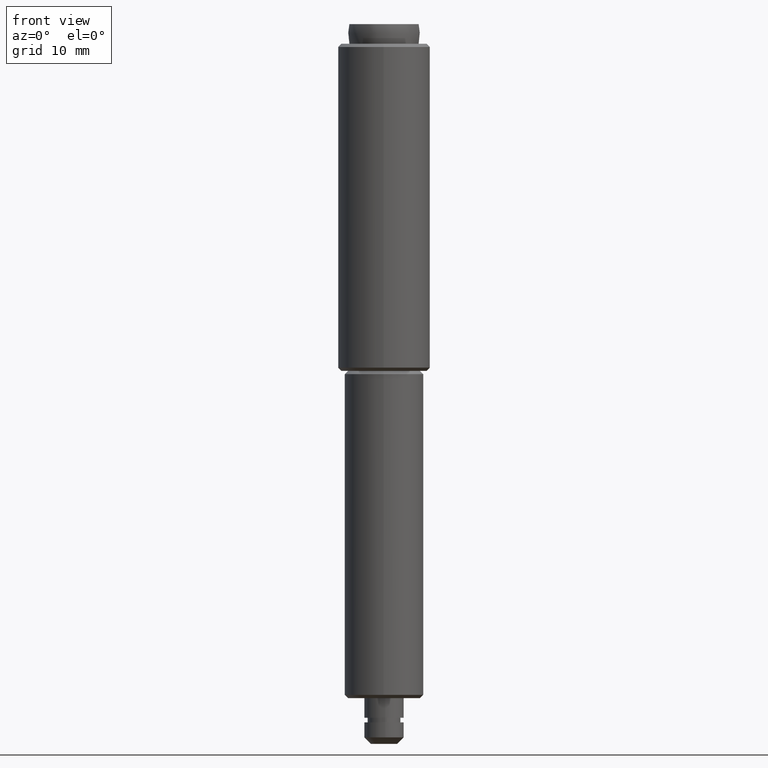
[diagram: clean part render]
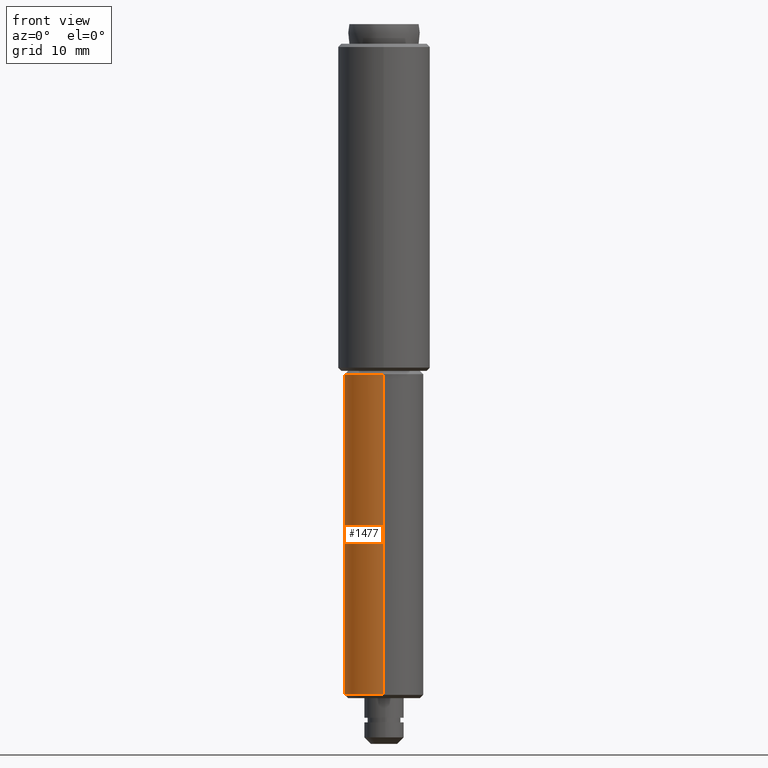
[diagram: same view with one face highlighted and labeled with its STEP entity id]
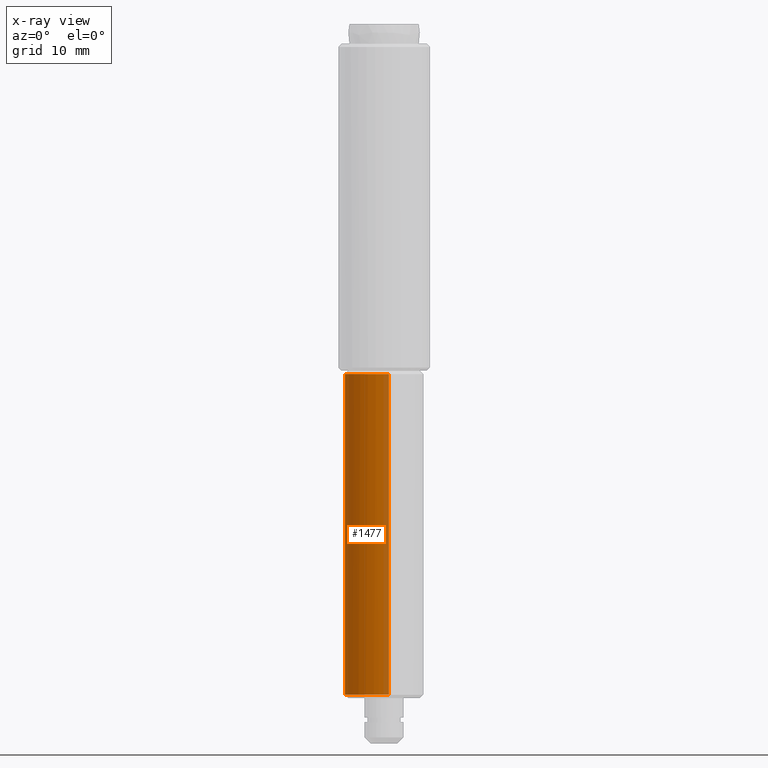
[diagram: x-ray of the same camera — body ghosted, the highlighted face saturated]
A machine part, front view. The second image highlights one B-rep face of the part: STEP entity #1477.
The next image is the same camera in x-ray: the body ghosted, the highlighted face saturated — about 12% of this face is hidden behind the body in this view.
In plain terms, the highlighted face is a freeform B-spline surface patch.
Its self-contained STEP definition (entity closure, byte-faithful):
#1014=CARTESIAN_POINT('',(-2.425292592207875,5.487982857342407,56.499999999974783));
#1015=VERTEX_POINT('',#1014);
#1016=CARTESIAN_POINT('',(0.744768012502784,5.953597282950256,56.500000000000000));
#1017=VERTEX_POINT('',#1016);
#1018=CARTESIAN_POINT('',(-2.425292592207875,5.487982857342407,56.499999999974797));
#1019=CARTESIAN_POINT('',(-1.266693703820140,5.999999999999999,56.500000000000007));
#1020=CARTESIAN_POINT('',(0.0,6.0,56.500000000000000));
#1021=CARTESIAN_POINT('',(0.373829565225048,6.000000000000001,56.500000000000007));
#1022=CARTESIAN_POINT('',(0.744768012502784,5.953597282950256,56.500000000000000));
#1030=(BOUNDED_CURVE()B_SPLINE_CURVE(2,(#1018,#1019,#1020,#1021,#1022),.UNSPECIFIED.,.F.,.U.)B_SPLINE_CURVE_WITH_KNOTS((3,2,3),(0.181361578444544,0.250000000000000,0.271473928972050),.UNSPECIFIED.)CURVE()GEOMETRIC_REPRESENTATION_ITEM()RATIONAL_B_SPLINE_CURVE((0.883326595735626,0.919585087105391,1.0,0.974841727291220,0.954005430272102))REPRESENTATION_ITEM(''));
#1031=EDGE_CURVE('',#1015,#1017,#1030,.T.);
#1074=CARTESIAN_POINT('',(-0.052359213121789,-5.999771538383760,56.500000000000107));
#1075=VERTEX_POINT('',#1074);
#1132=CARTESIAN_POINT('',(-6.0,0.0,56.500000000000000));
#1133=VERTEX_POINT('',#1132);
#1134=CARTESIAN_POINT('',(-6.0,0.0,56.500000000000000));
#1135=CARTESIAN_POINT('',(-6.0,3.908220015128642,56.499999999999993));
#1136=CARTESIAN_POINT('',(-2.425292592207875,5.487982857342407,56.499999999974797));
#1144=(BOUNDED_CURVE()B_SPLINE_CURVE(2,(#1134,#1135,#1136),.UNSPECIFIED.,.F.,.U.)B_SPLINE_CURVE_WITH_KNOTS((3,3),(0.0,0.181361578444544),.UNSPECIFIED.)CURVE()GEOMETRIC_REPRESENTATION_ITEM()RATIONAL_B_SPLINE_CURVE((1.0,0.787521694081156,0.883326595735626))REPRESENTATION_ITEM(''));
#1145=EDGE_CURVE('',#1133,#1015,#1144,.T.);
#1147=CARTESIAN_POINT('',(-0.052359213121789,-5.999771538383760,56.500000000000114));
#1148=CARTESIAN_POINT('',(-6.000000000000001,-5.947867263048213,56.500000000000007));
#1149=CARTESIAN_POINT('',(-6.0,0.0,56.500000000000000));
#1157=(BOUNDED_CURVE()B_SPLINE_CURVE(2,(#1147,#1148,#1149),.UNSPECIFIED.,.F.,.U.)B_SPLINE_CURVE_WITH_KNOTS((3,3),(0.751539894350435,1.0),.UNSPECIFIED.)CURVE()GEOMETRIC_REPRESENTATION_ITEM()RATIONAL_B_SPLINE_CURVE((0.996414028064655,0.708910879638274,1.0))REPRESENTATION_ITEM(''));
#1158=EDGE_CURVE('',#1075,#1133,#1157,.T.);
#1219=CARTESIAN_POINT('',(-5.845308919009538,1.353648271192896,7.500008000062973));
#1220=VERTEX_POINT('',#1219);
#1221=CARTESIAN_POINT('',(-6.0,0.0,7.500008000000000));
#1222=VERTEX_POINT('',#1221);
#1223=CARTESIAN_POINT('',(-5.845308919009539,1.353648271192896,7.500008000062973));
#1224=CARTESIAN_POINT('',(-6.000000000000001,0.685662964632475,7.500008000000000));
#1225=CARTESIAN_POINT('',(-6.0,0.0,7.500008000000000));
#1233=(BOUNDED_CURVE()B_SPLINE_CURVE(2,(#1223,#1224,#1225),.UNSPECIFIED.,.F.,.U.)B_SPLINE_CURVE_WITH_KNOTS((3,3),(0.961422971754846,1.0),.UNSPECIFIED.)CURVE()GEOMETRIC_REPRESENTATION_ITEM()RATIONAL_B_SPLINE_CURVE((0.923556557394568,0.954804200100078,1.0))REPRESENTATION_ITEM(''));
#1234=EDGE_CURVE('',#1220,#1222,#1233,.T.);
#1292=CARTESIAN_POINT('',(-0.052359214163134,5.999771538534402,7.500008000159578));
#1293=VERTEX_POINT('',#1292);
#1299=CARTESIAN_POINT('',(0.744763078572230,5.953597900158432,7.500007999999998));
#1300=VERTEX_POINT('',#1299);
#1301=CARTESIAN_POINT('',(0.744763078572230,5.953597900158433,7.500007999999998));
#1302=CARTESIAN_POINT('',(0.373827069369209,6.0,7.500008000000000));
#1303=CARTESIAN_POINT('',(0.0,6.0,7.500008000000000));
#1304=CARTESIAN_POINT('',(-0.026180106095789,6.0,7.500008000000000));
#1305=CARTESIAN_POINT('',(-0.052359214163134,5.999771538534402,7.500008000159578));
#1313=(BOUNDED_CURVE()B_SPLINE_CURVE(2,(#1301,#1302,#1303,#1304,#1305),.UNSPECIFIED.,.F.,.U.)B_SPLINE_CURVE_WITH_KNOTS((3,2,3),(0.728526210790736,0.750000000000000,0.751539894403774),.UNSPECIFIED.)CURVE()GEOMETRIC_REPRESENTATION_ITEM()RATIONAL_B_SPLINE_CURVE((0.954005701497817,0.974841891033508,1.0,0.998195901485783,0.996414027941213))REPRESENTATION_ITEM(''));
#1314=EDGE_CURVE('',#1300,#1293,#1313,.T.);
#1331=CARTESIAN_POINT('',(-0.052359213232947,-5.999771538382909,7.500008000000000));
#1332=VERTEX_POINT('',#1331);
#1348=CARTESIAN_POINT('',(-6.0,0.0,7.500008000000000));
#1349=CARTESIAN_POINT('',(-6.000000000000001,-5.947867263088646,7.500008000000001));
#1350=CARTESIAN_POINT('',(-0.052359213232947,-5.999771538382909,7.500008000000000));
#1358=(BOUNDED_CURVE()B_SPLINE_CURVE(2,(#1348,#1349,#1350),.UNSPECIFIED.,.F.,.U.)B_SPLINE_CURVE_WITH_KNOTS((3,3),(0.0,0.248460105650762),.UNSPECIFIED.)CURVE()GEOMETRIC_REPRESENTATION_ITEM()RATIONAL_B_SPLINE_CURVE((1.0,0.708910879636871,0.996414028067426))REPRESENTATION_ITEM(''));
#1359=EDGE_CURVE('',#1222,#1332,#1358,.T.);
#1378=CARTESIAN_POINT('',(-0.052359214163134,5.999771538534402,7.500008000159578));
#1379=CARTESIAN_POINT('',(-4.778918510446616,5.958523478445016,7.500008000000001));
#1380=CARTESIAN_POINT('',(-5.845308919009538,1.353648271192896,7.500008000062973));
#1388=(BOUNDED_CURVE()B_SPLINE_CURVE(2,(#1378,#1379,#1380),.UNSPECIFIED.,.F.,.U.)B_SPLINE_CURVE_WITH_KNOTS((3,3),(0.751539894403773,0.961422971754845),.UNSPECIFIED.)CURVE()GEOMETRIC_REPRESENTATION_ITEM()RATIONAL_B_SPLINE_CURVE((0.996414027941215,0.753549905525967,0.923556557394567))REPRESENTATION_ITEM(''));
#1389=EDGE_CURVE('',#1293,#1220,#1388,.T.);
#1429=CARTESIAN_POINT('',(-0.052359213121789,-5.999771538383760,56.500000000000107));
#1430=CARTESIAN_POINT('',(-0.052359213232947,-5.999771538382909,7.500008000000000));
#1431=QUASI_UNIFORM_CURVE('',1,(#1429,#1430),.UNSPECIFIED.,.F.,.U.);
#1432=EDGE_CURVE('',#1075,#1332,#1431,.T.);
#1436=CARTESIAN_POINT('',(0.744768012502784,5.953597282950256,56.500000000000000));
#1437=CARTESIAN_POINT('',(0.744763078572230,5.953597900158432,7.500007999999998));
#1438=QUASI_UNIFORM_CURVE('',1,(#1436,#1437),.UNSPECIFIED.,.F.,.U.);
#1439=EDGE_CURVE('',#1017,#1300,#1438,.T.);
#1444=CARTESIAN_POINT('',(-0.052359212990243,-5.999771538385026,57.724999800000013));
#1445=CARTESIAN_POINT('',(-6.052130751375269,-5.947412325394783,57.724999800000006));
#1446=CARTESIAN_POINT('',(-5.999771538385026,0.052359212990243,57.724999800000013));
#1447=CARTESIAN_POINT('',(-5.947412325394783,6.052130751375269,57.724999800000006));
#1448=CARTESIAN_POINT('',(0.052359212990243,5.999771538385026,57.724999800000013));
#1449=CARTESIAN_POINT('',(0.399900953749042,5.996738587561654,57.724999799999999));
#1450=CARTESIAN_POINT('',(0.744768012478976,5.953597282953231,57.724999800000006));
#1451=CARTESIAN_POINT('',(-0.052359212990243,-5.999771538385026,6.244383204999998));
#1452=CARTESIAN_POINT('',(-6.052130751375269,-5.947412325394783,6.244383204999998));
#1453=CARTESIAN_POINT('',(-5.999771538385026,0.052359212990243,6.244383204999998));
#1454=CARTESIAN_POINT('',(-5.947412325394783,6.052130751375269,6.244383204999998));
#1455=CARTESIAN_POINT('',(0.052359212990243,5.999771538385026,6.244383204999998));
#1456=CARTESIAN_POINT('',(0.399900953749042,5.996738587561654,6.244383204999997));
#1457=CARTESIAN_POINT('',(0.744768012478976,5.953597282953231,6.244383204999997));
#1465=(BOUNDED_SURFACE()B_SPLINE_SURFACE(2,1,((#1444,#1451),(#1445,#1452),(#1446,#1453),(#1447,#1454),(#1448,#1455),(#1449,#1456),(#1450,#1457)),.UNSPECIFIED.,.F.,.F.,.U.)B_SPLINE_SURFACE_WITH_KNOTS((3,2,2,3),(2,2),(0.0,9.941125496954278,19.882250993908560,20.677541033664902),(0.0,51.480616595000022),.UNSPECIFIED.)GEOMETRIC_REPRESENTATION_ITEM()RATIONAL_B_SPLINE_SURFACE(((1.0,1.0),(0.707106781186548,0.707106781186548),(1.0,1.0),(0.707106781186548,0.707106781186548),(1.0,1.0),(0.976568542494924,0.976568542494924),(0.956886118190660,0.956886118190660)))REPRESENTATION_ITEM('')SURFACE());
#1466=ORIENTED_EDGE('',*,*,#1145,.T.);
#1467=ORIENTED_EDGE('',*,*,#1031,.T.);
#1468=ORIENTED_EDGE('',*,*,#1439,.T.);
#1469=ORIENTED_EDGE('',*,*,#1314,.T.);
#1470=ORIENTED_EDGE('',*,*,#1389,.T.);
#1471=ORIENTED_EDGE('',*,*,#1234,.T.);
#1472=ORIENTED_EDGE('',*,*,#1359,.T.);
#1473=ORIENTED_EDGE('',*,*,#1432,.F.);
#1474=ORIENTED_EDGE('',*,*,#1158,.T.);
#1475=EDGE_LOOP('',(#1466,#1467,#1468,#1469,#1470,#1471,#1472,#1473,#1474));
#1476=FACE_OUTER_BOUND('',#1475,.T.);
#1477=ADVANCED_FACE('',(#1476),#1465,.T.);